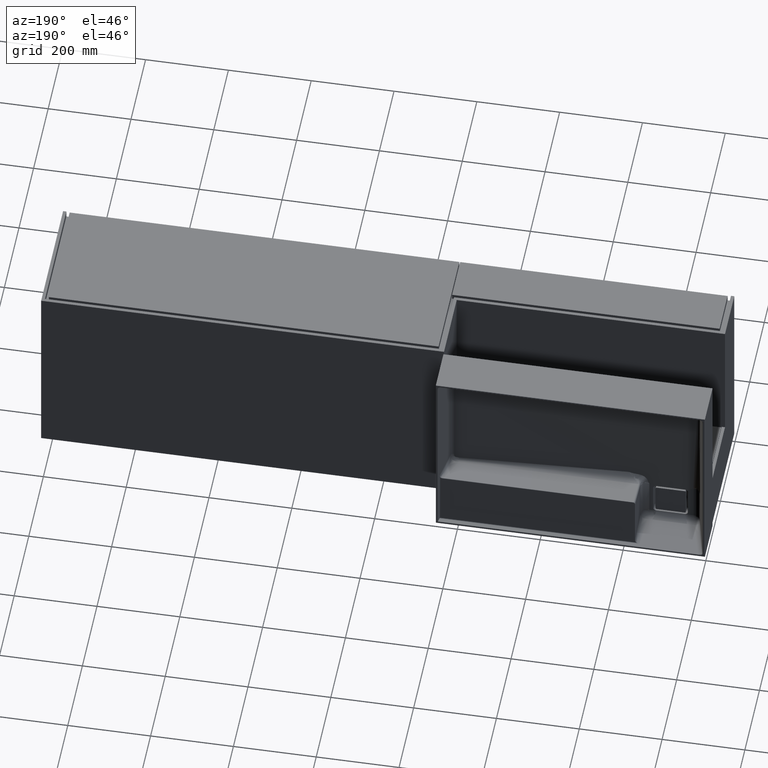
[diagram: clean part render]
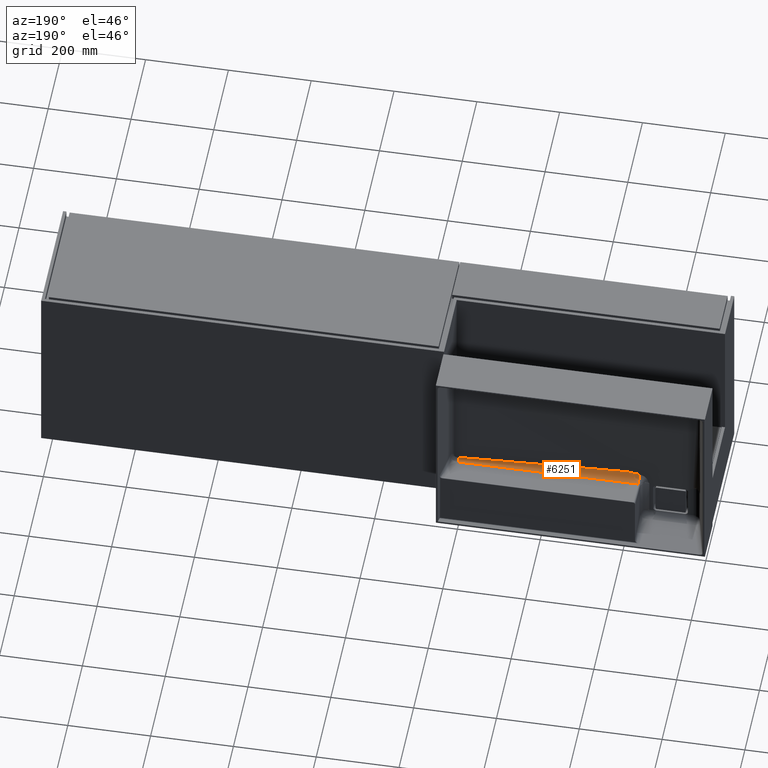
[diagram: same view with one face highlighted and labeled with its STEP entity id]
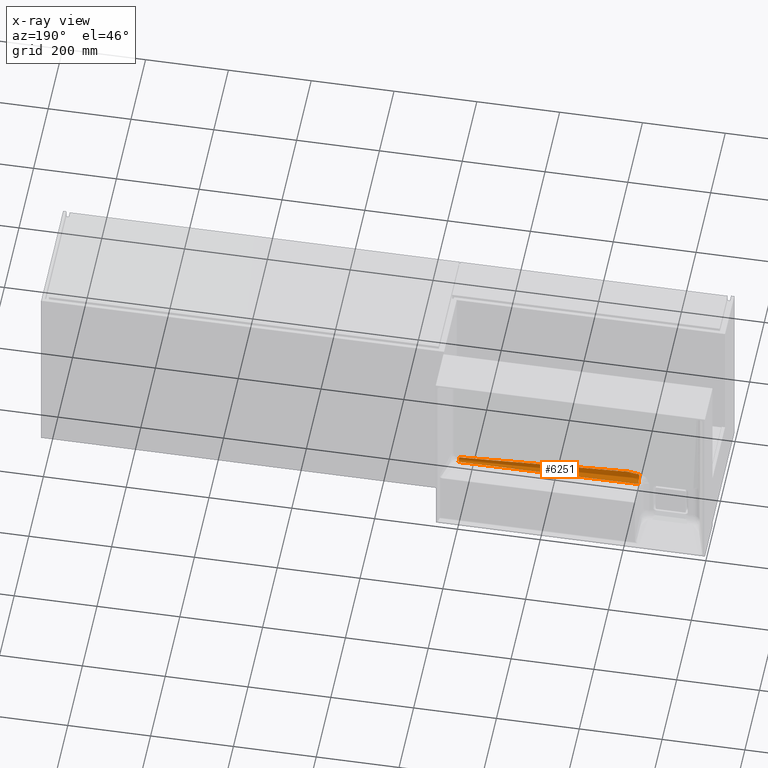
[diagram: x-ray of the same camera — body ghosted, the highlighted face saturated]
A machine part, auxiliary view. The second image highlights one B-rep face of the part: STEP entity #6251.
The next image is the same camera in x-ray: the body ghosted, the highlighted face saturated — about 0% of this face is hidden behind the body in this view.
In plain terms, the highlighted face is a freeform B-spline surface patch.
Its self-contained STEP definition (entity closure, byte-faithful):
#108 = CARTESIAN_POINT ( 'NONE',  ( 198.8552613548531269, 324.8220531439237675, -304.8234223945265171 ) ) ;
#114 = CARTESIAN_POINT ( 'NONE',  ( 606.6846168019781089, 345.2308073617368791, -323.4872604524591111 ) ) ;
#202 = CARTESIAN_POINT ( 'NONE',  ( 184.6771654203995752, 324.6808296650964962, -307.8211619812079789 ) ) ;
#1240 = CARTESIAN_POINT ( 'NONE',  ( 606.7164674865442748, 344.2019001532993343, -323.4603175689985619 ) ) ;
#1517 = CARTESIAN_POINT ( 'NONE',  ( 606.9319754812722749, 337.4440480074060815, -315.4900018526546432 ) ) ;
#1574 = CARTESIAN_POINT ( 'NONE',  ( 462.6130180137259913, 332.9795950682678836, -323.1664511682149055 ) ) ;
#1657 = CARTESIAN_POINT ( 'NONE',  ( 191.0590375558673202, 324.7265386575342063, -306.8509008232537099 ) ) ;
#1782 = EDGE_CURVE ( 'NONE', #11238, #16583, #8248, .T. ) ;
#2783 = CARTESIAN_POINT ( 'NONE',  ( 606.6846168019386596, 345.2308073616522961, -323.4872604524568942 ) ) ;
#3015 = CARTESIAN_POINT ( 'NONE',  ( 318.3153466064999293, 328.5158006054395514, -304.5403441625850292 ) ) ;
#3101 = CARTESIAN_POINT ( 'NONE',  ( 194.2290445181041321, 324.7556448546313845, -306.2330658854564263 ) ) ;
#3330 = EDGE_CURVE ( 'NONE', #16583, #17615, #11439, .T. ) ;
#3717 = CARTESIAN_POINT ( 'NONE',  ( 173.8613598786186003, 328.1329318382710767, -323.0395368250019601 ) ) ;
#3938 = ORIENTED_EDGE ( 'NONE', *, *, #1782, .F. ) ;
#3940 = CARTESIAN_POINT ( 'NONE',  ( 173.4152192562204391, 342.5450962275781990, -323.4169326313426609 ) ) ;
#4546 = CARTESIAN_POINT ( 'NONE',  ( 196.8433714277376794, 324.7865976977785181, -305.5760323383929062 ) ) ;
#4644 = CARTESIAN_POINT ( 'NONE',  ( 173.9812721945679925, 324.6229568114036965, -309.0496244574869706 ) ) ;
#4672 = CARTESIAN_POINT ( 'NONE',  ( 606.6846168019386596, 345.2308073616522961, -323.4872604524568942 ) ) ;
#5148 = CARTESIAN_POINT ( 'NONE',  ( 173.9812721945679925, 324.6229568114036965, -309.0496244574869706 ) ) ;
#5279 = CARTESIAN_POINT ( 'NONE',  ( 335.1974854116677420, 329.0380432513831579, -305.7710013909584177 ) ) ;
#5867 = CARTESIAN_POINT ( 'NONE',  ( 606.6846168019386596, 345.2308073616522961, -323.4872604524568942 ) ) ;
#5994 = CARTESIAN_POINT ( 'NONE',  ( 198.3646758481632162, 324.8115746191032827, -305.0458492099912178 ) ) ;
#5999 = VERTEX_POINT ( 'NONE', #5148 ) ;
#6002 = CARTESIAN_POINT ( 'NONE',  ( 462.3719663152674002, 340.7665495266904259, -323.3703597469259421 ) ) ;
#6086 = CARTESIAN_POINT ( 'NONE',  ( 182.5415527639360107, 324.6680791695545736, -308.0918157390207739 ) ) ;
#6251 = ADVANCED_FACE ( 'NONE', ( #17720 ), #11782, .T. ) ;
#6753 = B_SPLINE_CURVE_WITH_KNOTS ( 'NONE', 3,
 ( #7293, #13192, #19136, #5867 ),
 .UNSPECIFIED., .F., .F.,
 ( 4, 4 ),
 ( -0.4346882425457793686, -0.001543048426497328762 ),
 .UNSPECIFIED. ) ;
#7293 = CARTESIAN_POINT ( 'NONE',  ( 173.4152192562204391, 342.5450962275781990, -323.4169326313426609 ) ) ;
#7425 = CARTESIAN_POINT ( 'NONE',  ( 199.3272960926468897, 324.8349497930412326, -304.5496662463541497 ) ) ;
#7433 = CARTESIAN_POINT ( 'NONE',  ( 318.3003675270151689, 328.5153372332214872, -323.0495504626817365 ) ) ;
#7522 = CARTESIAN_POINT ( 'NONE',  ( 188.9359916805834985, 324.7100343581348625, -307.2012362778855845 ) ) ;
#8248 = B_SPLINE_CURVE_WITH_KNOTS ( 'NONE', 3,
 ( #2783, #1240, #15748, #15839, #15939, #16037, #16132, #16222, #16995, #17092 ),
 .UNSPECIFIED., .F., .F.,
 ( 4, 2, 2, 2, 4 ),
 ( 0.0000000000000000000, 0.2500000000000000000, 0.5000000000000000000, 0.7500000000000000000, 1.000000000000000000 ),
 .UNSPECIFIED. ) ;
#8898 = CARTESIAN_POINT ( 'NONE',  ( 174.0026961197890785, 324.0515427703932119, -304.4234434570518602 ) ) ;
#8979 = CARTESIAN_POINT ( 'NONE',  ( 193.7021115397274968, 324.7503751772954956, -306.3449249084007988 ) ) ;
#9092 = ORIENTED_EDGE ( 'NONE', *, *, #15236, .T. ) ;
#9484 = ORIENTED_EDGE ( 'NONE', *, *, #10644, .F. ) ;
#9598 = CARTESIAN_POINT ( 'NONE',  ( 173.9812721945679925, 324.6229568114036965, -309.0496244574869706 ) ) ;
#10341 = CARTESIAN_POINT ( 'NONE',  ( 606.9319754812722749, 337.4440480074060815, -315.4900018526546432 ) ) ;
#10431 = CARTESIAN_POINT ( 'NONE',  ( 195.8048643806829148, 324.7731144977070699, -305.8622391571529420 ) ) ;
#10538 = VERTEX_POINT ( 'NONE', #3940 ) ;
#10644 = EDGE_CURVE ( 'NONE', #10538, #11238, #6753, .T. ) ;
#10895 = ORIENTED_EDGE ( 'NONE', *, *, #3330, .F. ) ;
#10977 = B_SPLINE_CURVE_WITH_KNOTS ( 'NONE', 3,
 ( #7425, #13322, #108, #5994, #11873, #17817, #4546, #10431, #16375, #3101, #8979, #14899, #1657, #7522, #13422, #202, #6086, #11973, #17919, #4644 ),
 .UNSPECIFIED., .F., .F.,
 ( 4, 2, 2, 2, 2, 2, 2, 2, 2, 4 ),
 ( 0.0000000000000000000, 0.0008055719474761910805, 0.001611143894952382161, 0.003222287789904821568, 0.004833431684857261192, 0.006444575579809700382, 0.009666863369714499832, 0.01288915115961929841, 0.01933372673942889558, 0.02577830231923849275 ),
 .UNSPECIFIED. ) ;
#11238 = VERTEX_POINT ( 'NONE', #4672 ) ;
#11439 = B_SPLINE_CURVE_WITH_KNOTS ( 'NONE', 3,
 ( #16273, #13203, #5279, #11732 ),
 .UNSPECIFIED., .F., .F.,
 ( 4, 4 ),
 ( -0.4346882425457793686, -0.02687985659662373017 ),
 .UNSPECIFIED. ) ;
#11732 = CARTESIAN_POINT ( 'NONE',  ( 199.3272960926468897, 324.8349497930412326, -304.5496662463541497 ) ) ;
#11782 =( BOUNDED_SURFACE ( )  B_SPLINE_SURFACE ( 2, 3, ( 
 ( #10341, #16281, #3015, #8898 ),
 ( #14821, #1574, #7433, #13332 ),
 ( #114, #6002, #11879, #17823 ) ),
 .UNSPECIFIED., .F., .F., .T. ) 
 B_SPLINE_SURFACE_WITH_KNOTS ( ( 3, 3 ),
 ( 4, 4 ),
 ( 0.0000000000000000000, 1.000000000000000000 ),
 ( -0.4346882425457793686, -0.001543048426497325726 ),
 .UNSPECIFIED. ) 
 GEOMETRIC_REPRESENTATION_ITEM ( )  RATIONAL_B_SPLINE_SURFACE ( (
 ( 1.000000000000000000, 1.000000000000000000, 1.000000000000000000, 1.000000000000000000),
 ( 0.7162975751252874668, 0.7162975751252874668, 0.7162975751252874668, 0.7162975751252874668),
 ( 1.000000000000000000, 1.000000000000000000, 1.000000000000000000, 1.000000000000000000) ) ) 
 REPRESENTATION_ITEM ( '' )  SURFACE ( )  );
#11855 = ORIENTED_EDGE ( 'NONE', *, *, #15637, .F. ) ;
#11873 = CARTESIAN_POINT ( 'NONE',  ( 198.1148904920751477, 324.8069209751066637, -305.1446317420965215 ) ) ;
#11879 = CARTESIAN_POINT ( 'NONE',  ( 317.7278697431760861, 347.0093540719751672, -323.5338333371205977 ) ) ;
#11973 = CARTESIAN_POINT ( 'NONE',  ( 178.2644837121266335, 324.6443237527145129, -308.5960700885869983 ) ) ;
#12430 = EDGE_LOOP ( 'NONE', ( #11855, #10895, #3938, #9484, #9092 ) ) ;
#13019 =( BOUNDED_CURVE ( )  B_SPLINE_CURVE ( 2, ( #16971, #3717, #9598 ),
 .UNSPECIFIED., .F., .T. ) 
 B_SPLINE_CURVE_WITH_KNOTS ( ( 3, 3 ),
 ( 0.0000000000000000000, 1.000000000000000000 ),
 .UNSPECIFIED. ) 
 CURVE ( )  GEOMETRIC_REPRESENTATION_ITEM ( )  RATIONAL_B_SPLINE_CURVE ( ( 1.000000000000000000, 0.7641457412185799214, 0.9204434452545304790 ) ) 
 REPRESENTATION_ITEM ( '' )  );
#13192 = CARTESIAN_POINT ( 'NONE',  ( 317.7278697431760861, 347.0093540719751672, -323.5338333371205977 ) ) ;
#13203 = CARTESIAN_POINT ( 'NONE',  ( 471.0608868346714644, 333.2409267287021066, -315.3799392485047974 ) ) ;
#13322 = CARTESIAN_POINT ( 'NONE',  ( 199.0965661181186306, 324.8278122476277758, -304.7011743568678526 ) ) ;
#13332 = CARTESIAN_POINT ( 'NONE',  ( 173.9877170403043749, 324.0510793981750908, -322.9326497571486243 ) ) ;
#13422 = CARTESIAN_POINT ( 'NONE',  ( 187.8723330342560871, 324.7024201626881563, -307.3628622008574212 ) ) ;
#14821 = CARTESIAN_POINT ( 'NONE',  ( 606.9256685004367000, 337.4438529033143368, -323.2833518737480745 ) ) ;
#14899 = CARTESIAN_POINT ( 'NONE',  ( 192.1184905281105273, 324.7354091234107045, -306.6626081474755097 ) ) ;
#15236 = EDGE_CURVE ( 'NONE', #10538, #5999, #13019, .T. ) ;
#15637 = EDGE_CURVE ( 'NONE', #17615, #5999, #10977, .T. ) ;
#15748 = CARTESIAN_POINT ( 'NONE',  ( 606.7483064508006692, 343.1786398577672799, -323.2321963724518810 ) ) ;
#15839 = CARTESIAN_POINT ( 'NONE',  ( 606.8073170552662532, 341.2926610861864560, -322.4068700512897294 ) ) ;
#15939 = CARTESIAN_POINT ( 'NONE',  ( 606.8344669809553125, 340.4306366061871358, -321.8099686274450164 ) ) ;
#16037 = CARTESIAN_POINT ( 'NONE',  ( 606.8800961171946255, 338.9942483443089145, -320.3347505222957921 ) ) ;
#16132 = CARTESIAN_POINT ( 'NONE',  ( 606.8985585372913647, 338.4204131196938192, -319.4569766867286944 ) ) ;
#16222 = CARTESIAN_POINT ( 'NONE',  ( 606.9240862386010349, 337.6451574235028943, -317.5491274639952053 ) ) ;
#16273 = CARTESIAN_POINT ( 'NONE',  ( 606.9319754812722749, 337.4440480074060815, -315.4900018526546432 ) ) ;
#16281 = CARTESIAN_POINT ( 'NONE',  ( 462.6193249945616799, 332.9797901723597420, -315.3731011471215879 ) ) ;
#16375 = CARTESIAN_POINT ( 'NONE',  ( 195.2801291537132897, 324.7670150134595133, -305.9917124256148213 ) ) ;
#16583 = VERTEX_POINT ( 'NONE', #1517 ) ;
#16971 = CARTESIAN_POINT ( 'NONE',  ( 173.4152192562204391, 342.5450962275781990, -323.4169326313426609 ) ) ;
#16995 = CARTESIAN_POINT ( 'NONE',  ( 606.9311421262175372, 337.4440222278793726, -316.5197541206923120 ) ) ;
#17092 = CARTESIAN_POINT ( 'NONE',  ( 606.9319754812722749, 337.4440480074060815, -315.4900018526546432 ) ) ;
#17615 = VERTEX_POINT ( 'NONE', #18296 ) ;
#17720 = FACE_OUTER_BOUND ( 'NONE', #12430, .T. ) ;
#17817 = CARTESIAN_POINT ( 'NONE',  ( 197.3579698442217421, 324.7939460989398981, -305.4200484096359673 ) ) ;
#17823 = CARTESIAN_POINT ( 'NONE',  ( 173.4152192564652921, 342.5450962369287140, -323.4169326315874287 ) ) ;
#17919 = CARTESIAN_POINT ( 'NONE',  ( 176.1234516139296034, 324.6333546551161930, -308.8289102535019879 ) ) ;
#18296 = CARTESIAN_POINT ( 'NONE',  ( 199.3272960926468897, 324.8349497930412326, -304.5496662463541497 ) ) ;
#19136 = CARTESIAN_POINT ( 'NONE',  ( 462.3719663152674002, 340.7665495266904259, -323.3703597469259421 ) ) ;